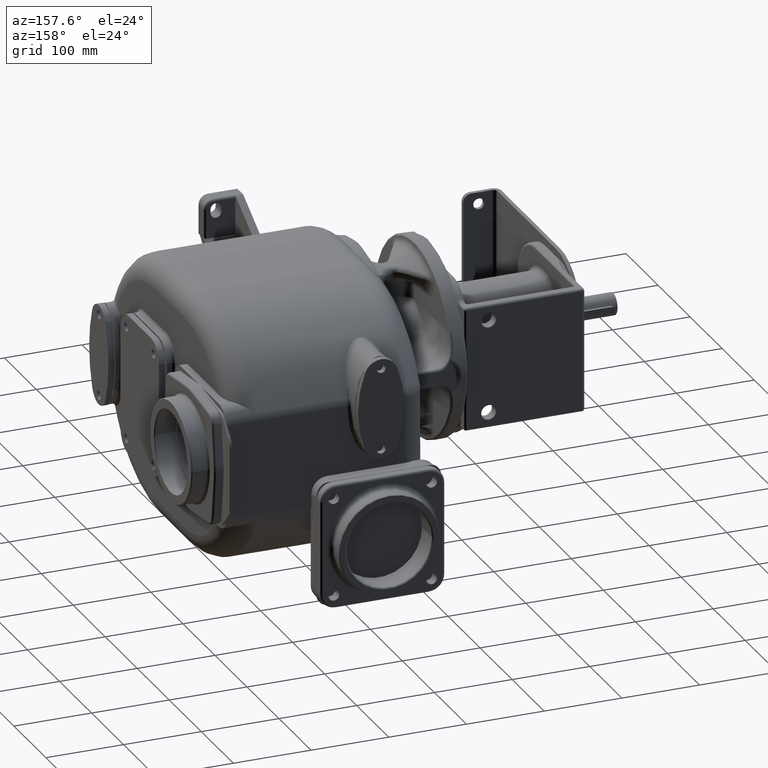
[diagram: clean part render]
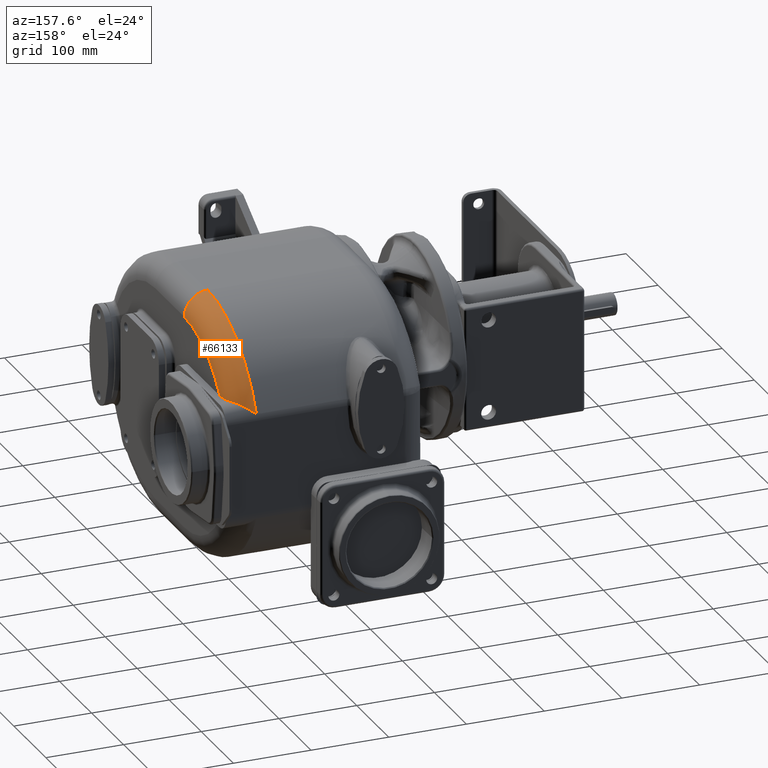
[diagram: same view with one face highlighted and labeled with its STEP entity id]
A machine part, auxiliary view. The second image highlights one B-rep face of the part: STEP entity #66133.
In plain terms, the highlighted toroidal blend (fillet) surface has major radius 137 mm and minor (blend) radius 30 mm.
Its self-contained STEP definition (entity closure, byte-faithful):
#21195=CARTESIAN_POINT('',(1.15E2,2.708023845219E2,-1.7E1));
#21196=DIRECTION('',(1.E0,0.E0,0.E0));
#21197=DIRECTION('',(0.E0,9.129089488304E-1,4.081632653061E-1));
#21198=AXIS2_PLACEMENT_3D('',#21195,#21196,#21197);
#22007=CARTESIAN_POINT('',(1.15E2,2.708023845219E2,1.2E2));
#22008=DIRECTION('',(0.E0,-1.E0,0.E0));
#22009=DIRECTION('',(1.E0,0.E0,0.E0));
#22010=AXIS2_PLACEMENT_3D('',#22007,#22008,#22009);
#22112=CARTESIAN_POINT('',(1.45E2,2.708023845219E2,-1.7E1));
#22113=DIRECTION('',(1.E0,0.E0,0.E0));
#22114=DIRECTION('',(0.E0,8.117956645423E-1,5.839416058394E-1));
#22115=AXIS2_PLACEMENT_3D('',#22112,#22113,#22114);
#23184=CARTESIAN_POINT('',(1.15E2,4.232581789766E2,5.116326530612E1));
#23185=CARTESIAN_POINT('',(1.152965814744E2,4.231528296233E2,5.139889250630E1));
#23186=CARTESIAN_POINT('',(1.158893812362E2,4.229331418649E2,5.186578165633E1));
#23187=CARTESIAN_POINT('',(1.167776655370E2,4.225768054507E2,5.255276456294E1));
#23188=CARTESIAN_POINT('',(1.176631114911E2,4.221946982711E2,5.322453628781E1));
#23189=CARTESIAN_POINT('',(1.185449686036E2,4.217874842382E2,5.388019557545E1));
#23190=CARTESIAN_POINT('',(1.194221559769E2,4.213560056227E2,5.451861427595E1));
#23191=CARTESIAN_POINT('',(1.202929342955E2,4.209015430978E2,5.513825183091E1));
#23192=CARTESIAN_POINT('',(1.211564563621E2,4.204250273792E2,5.573827503058E1));
#23193=CARTESIAN_POINT('',(1.220117503425E2,4.199274910681E2,5.631779389563E1));
#23194=CARTESIAN_POINT('',(1.228571176367E2,4.194104966472E2,5.687550119471E1));
#23195=CARTESIAN_POINT('',(1.236921017178E2,4.188749404423E2,5.741098036500E1));
#23196=CARTESIAN_POINT('',(1.245155676081E2,4.183221707285E2,5.792340665264E1));
#23197=CARTESIAN_POINT('',(1.253262415573E2,4.177537388157E2,5.841195698604E1));
#23198=CARTESIAN_POINT('',(1.261238643193E2,4.171705323930E2,5.887647066709E1));
#23199=CARTESIAN_POINT('',(1.269071190316E2,4.165742393764E2,5.931620974129E1));
#23200=CARTESIAN_POINT('',(1.276752524868E2,4.159662245082E2,5.973084832748E1));
#23201=CARTESIAN_POINT('',(1.284279681845E2,4.153475031459E2,6.012033878049E1));
#23202=CARTESIAN_POINT('',(1.291641203897E2,4.147198327405E2,6.048425001492E1));
#23203=CARTESIAN_POINT('',(1.298836257961E2,4.140841245917E2,6.082274552073E1));
#23204=CARTESIAN_POINT('',(1.305858261870E2,4.134417881751E2,6.113573550924E1));
#23205=CARTESIAN_POINT('',(1.312699951109E2,4.127943692665E2,6.142318358571E1));
#23206=CARTESIAN_POINT('',(1.319362998492E2,4.121425806392E2,6.168546487956E1));
#23207=CARTESIAN_POINT('',(1.325839871459E2,4.114880356024E2,6.192261791270E1));
#23208=CARTESIAN_POINT('',(1.332131116466E2,4.108315807060E2,6.213504477104E1));
#23209=CARTESIAN_POINT('',(1.338235352569E2,4.101742352658E2,6.232308328223E1));
#23210=CARTESIAN_POINT('',(1.344147742556E2,4.095174305223E2,6.248702520124E1));
#23211=CARTESIAN_POINT('',(1.349872654434E2,4.088615797470E2,6.262744660806E1));
#23212=CARTESIAN_POINT('',(1.355406011279E2,4.082080404179E2,6.274471949101E1));
#23213=CARTESIAN_POINT('',(1.360750362382E2,4.075574222432E2,6.283941278335E1));
#23214=CARTESIAN_POINT('',(1.365907572074E2,4.069103742490E2,6.291206427602E1));
#23215=CARTESIAN_POINT('',(1.370875941856E2,4.062680059573E2,6.296319711041E1));
#23216=CARTESIAN_POINT('',(1.375661142396E2,4.056304640760E2,6.299342185999E1));
#23217=CARTESIAN_POINT('',(1.378727738144E2,4.052094242125E2,6.3E1));
#23218=CARTESIAN_POINT('',(1.380230530093E2,4.05E2,6.3E1));
#23220=CARTESIAN_POINT('',(1.380230530093E2,4.05E2,6.3E1));
#23221=CARTESIAN_POINT('',(1.381982021953E2,4.047559177744E2,6.3E1));
#23222=CARTESIAN_POINT('',(1.385434831582E2,4.042608512563E2,6.3E1));
#23223=CARTESIAN_POINT('',(1.390462819510E2,4.034969432949E2,6.3E1));
#23224=CARTESIAN_POINT('',(1.395328958117E2,4.027126190810E2,6.3E1));
#23225=CARTESIAN_POINT('',(1.400030245238E2,4.019076435134E2,6.3E1));
#23226=CARTESIAN_POINT('',(1.404561062840E2,4.010821219483E2,6.3E1));
#23227=CARTESIAN_POINT('',(1.408912464408E2,4.002368540594E2,6.3E1));
#23228=CARTESIAN_POINT('',(1.413081872977E2,3.993714425805E2,6.3E1));
#23229=CARTESIAN_POINT('',(1.417062193209E2,3.984863114332E2,6.3E1));
#23230=CARTESIAN_POINT('',(1.420845153918E2,3.975822989603E2,6.3E1));
#23231=CARTESIAN_POINT('',(1.424427617872E2,3.966590481511E2,6.3E1));
#23232=CARTESIAN_POINT('',(1.427802434563E2,3.957171103925E2,6.3E1));
#23233=CARTESIAN_POINT('',(1.430961817195E2,3.947574151741E2,6.3E1));
#23234=CARTESIAN_POINT('',(1.433902312134E2,3.937796060203E2,6.3E1));
#23235=CARTESIAN_POINT('',(1.436616706461E2,3.927844285112E2,6.3E1));
#23236=CARTESIAN_POINT('',(1.439097748463E2,3.917729364480E2,6.3E1));
#23237=CARTESIAN_POINT('',(1.441341475529E2,3.907449087436E2,6.3E1));
#23238=CARTESIAN_POINT('',(1.443341343150E2,3.897011202434E2,6.3E1));
#23239=CARTESIAN_POINT('',(1.445090680425E2,3.886428192711E2,6.3E1));
#23240=CARTESIAN_POINT('',(1.446585303998E2,3.875699070386E2,6.3E1));
#23241=CARTESIAN_POINT('',(1.447819246523E2,3.864833275264E2,6.3E1));
#23242=CARTESIAN_POINT('',(1.448786805580E2,3.853845126952E2,6.3E1));
#23243=CARTESIAN_POINT('',(1.449483777636E2,3.842737770197E2,6.3E1));
#23244=CARTESIAN_POINT('',(1.449905447911E2,3.831516890297E2,6.3E1));
#23245=CARTESIAN_POINT('',(1.45E2,3.823972824980E2,6.3E1));
#23246=CARTESIAN_POINT('',(1.45E2,3.820183905642E2,6.3E1));
#29007=CARTESIAN_POINT('',(1.45E2,2.708023845219E2,1.2E2));
#29009=VERTEX_POINT('',#29007);
#29011=CARTESIAN_POINT('',(1.15E2,2.708023845218E2,1.5E2));
#29012=VERTEX_POINT('',#29011);
#29013=CARTESIAN_POINT('',(1.45E2,3.820183905642E2,6.3E1));
#29014=VERTEX_POINT('',#29013);
#29015=CARTESIAN_POINT('',(1.15E2,4.232581789766E2,5.116326530612E1));
#29016=VERTEX_POINT('',#29015);
#29021=VERTEX_POINT('',#23218);
#66121=CARTESIAN_POINT('',(1.15E2,2.708023845219E2,-1.7E1));
#66122=DIRECTION('',(-1.E0,0.E0,0.E0));
#66123=DIRECTION('',(0.E0,9.160353990559E-1,4.010974291571E-1));
#66124=AXIS2_PLACEMENT_3D('',#66121,#66122,#66123);
#66125=TOROIDAL_SURFACE('',#66124,1.37E2,3.E1);
#66126=ORIENTED_EDGE('',*,*,#65237,.T.);
#66127=ORIENTED_EDGE('',*,*,#65222,.T.);
#66128=ORIENTED_EDGE('',*,*,#64521,.F.);
#66129=ORIENTED_EDGE('',*,*,#66111,.T.);
#66130=ORIENTED_EDGE('',*,*,#66013,.T.);
#66131=EDGE_LOOP('',(#66126,#66127,#66128,#66129,#66130));
#66132=FACE_OUTER_BOUND('',#66131,.F.);
#66133=ADVANCED_FACE('',(#66132),#66125,.T.);
#21199=CIRCLE('',#21198,1.67E2);
#22011=CIRCLE('',#22010,3.E1);
#22116=CIRCLE('',#22115,1.37E2);
#23219=B_SPLINE_CURVE_WITH_KNOTS('',3,(#23184,#23185,#23186,#23187,#23188,
#23189,#23190,#23191,#23192,#23193,#23194,#23195,#23196,#23197,#23198,#23199,
#23200,#23201,#23202,#23203,#23204,#23205,#23206,#23207,#23208,#23209,#23210,
#23211,#23212,#23213,#23214,#23215,#23216,#23217,#23218),.UNSPECIFIED.,.F.,.F.,(
4,1,1,1,1,1,1,1,1,1,1,1,1,1,1,1,1,1,1,1,1,1,1,1,1,1,1,1,1,1,1,1,4),(0.E0,
3.125E-2,6.25E-2,9.375E-2,1.25E-1,1.5625E-1,1.875E-1,2.1875E-1,2.5E-1,2.8125E-1,
3.125E-1,3.4375E-1,3.75E-1,4.0625E-1,4.375E-1,4.6875E-1,5.E-1,5.3125E-1,
5.625E-1,5.9375E-1,6.25E-1,6.5625E-1,6.875E-1,7.1875E-1,7.5E-1,7.8125E-1,
8.125E-1,8.4375E-1,8.75E-1,9.0625E-1,9.375E-1,9.6875E-1,1.E0),.UNSPECIFIED.);
#23247=B_SPLINE_CURVE_WITH_KNOTS('',3,(#23220,#23221,#23222,#23223,#23224,
#23225,#23226,#23227,#23228,#23229,#23230,#23231,#23232,#23233,#23234,#23235,
#23236,#23237,#23238,#23239,#23240,#23241,#23242,#23243,#23244,#23245,#23246),
.UNSPECIFIED.,.F.,.F.,(4,1,1,1,1,1,1,1,1,1,1,1,1,1,1,1,1,1,1,1,1,1,1,1,4),(0.E0,
4.166666666667E-2,8.333333333333E-2,1.25E-1,1.666666666667E-1,2.083333333333E-1,
2.5E-1,2.916666666667E-1,3.333333333333E-1,3.75E-1,4.166666666667E-1,
4.583333333333E-1,5.E-1,5.416666666667E-1,5.833333333333E-1,6.25E-1,
6.666666666667E-1,7.083333333333E-1,7.5E-1,7.916666666667E-1,8.333333333333E-1,
8.75E-1,9.166666666667E-1,9.583333333333E-1,1.E0),.UNSPECIFIED.);
#64521=EDGE_CURVE('',#29016,#29012,#21199,.T.);
#65222=EDGE_CURVE('',#29009,#29012,#22011,.T.);
#65237=EDGE_CURVE('',#29014,#29009,#22116,.T.);
#66013=EDGE_CURVE('',#29021,#29014,#23247,.T.);
#66111=EDGE_CURVE('',#29016,#29021,#23219,.T.);